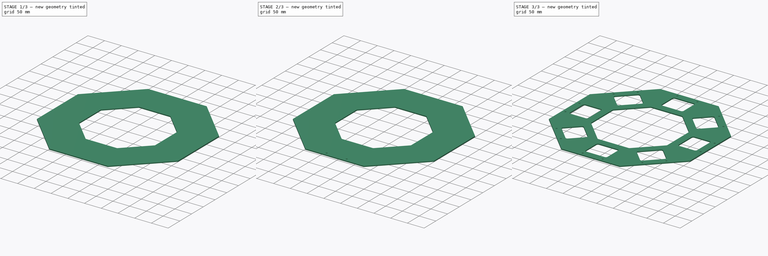
[diagram: build sequence overview — one tinted view per stage of 3, left to right]
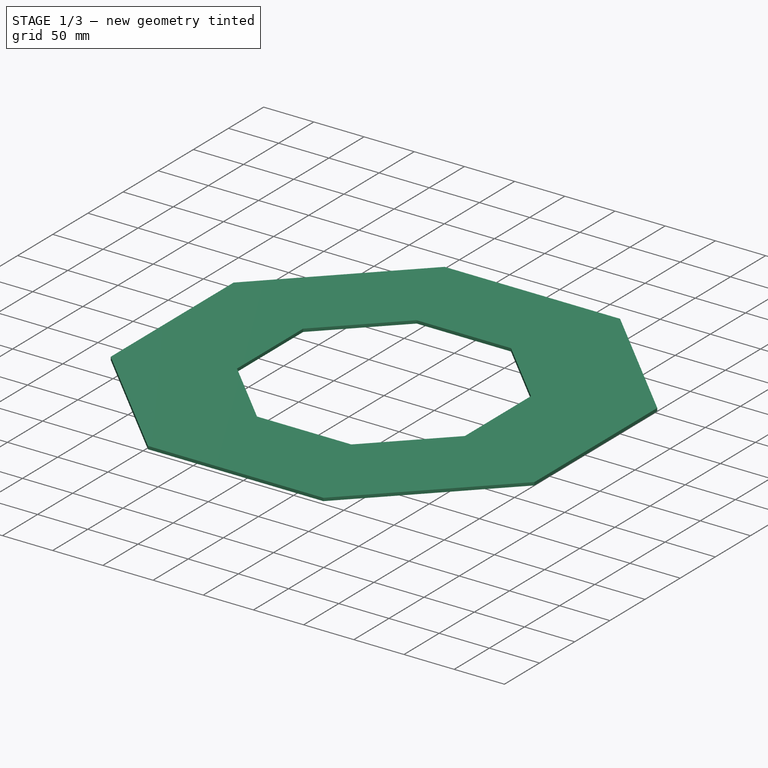
[diagram: stage 1 of 3 — iso view after this stage's code; geometry added in this stage tinted green]
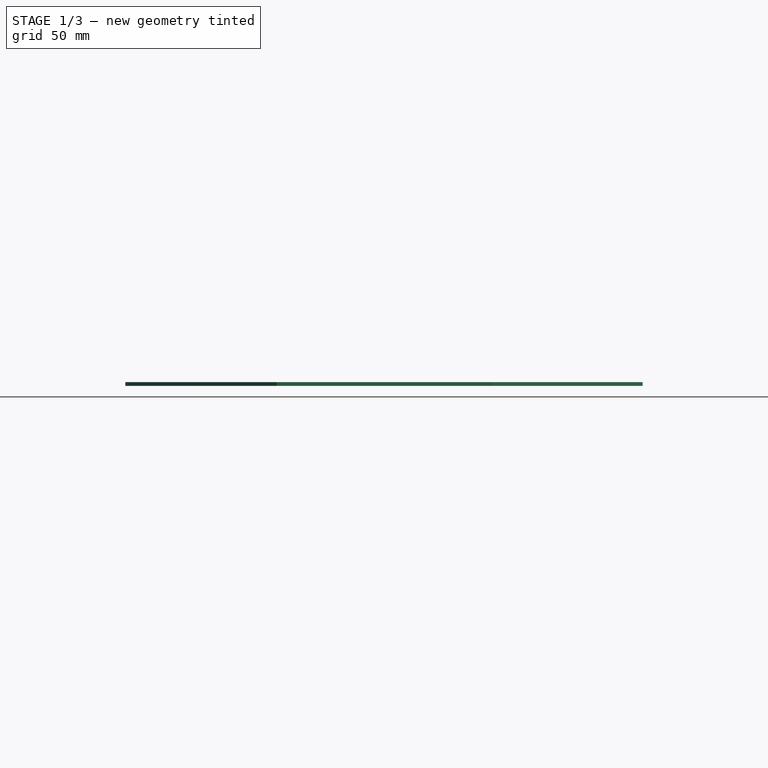
[diagram: stage 1 of 3 — front view after this stage's code; geometry added in this stage tinted green]
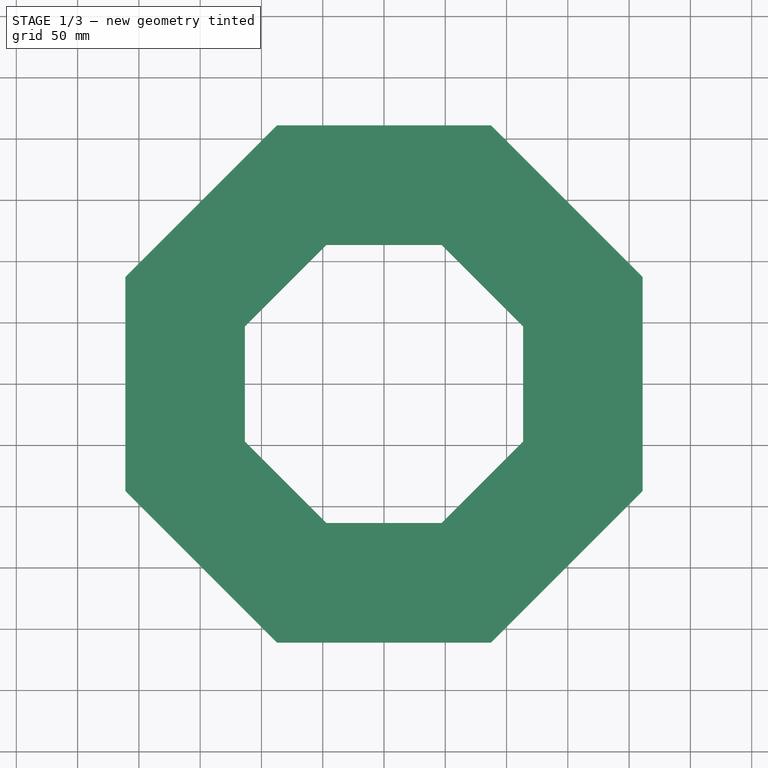
[diagram: stage 1 of 3 — top view after this stage's code; geometry added in this stage tinted green]
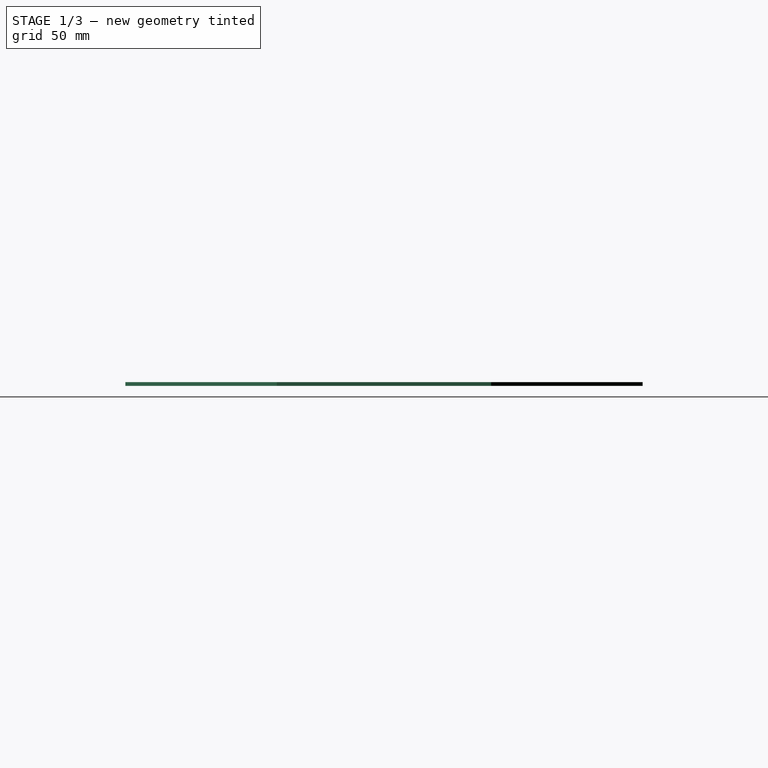
[diagram: stage 1 of 3 — right view after this stage's code; geometry added in this stage tinted green]
FCSTD DOCUMENT  (FreeCAD 1.0R39319 (Git))
Label: OCT-CHTOP-AA
License: Creative Commons Attribution 4.0
LicenseURL: https://creativecommons.org/licenses/by/4.0/
objects: Sketcher::SketchObject×4, PartDesign::Pocket×2, App::Link×1, PartDesign::Pad×1, PartDesign::Fillet×1, PartDesign::Hole×1, PartDesign::PolarPattern×1, PartDesign::Body×1
note: 26 computed .brp shape members not serialized (recipe doc carries the construction recipe); baked Part::Feature solids carry a one-line shape summary decoded from their .brp
EXTERNAL_REF file=../../master.FCStd obj=Spreadsheet

FEATURE [App::Link] Link  label="dims"
  LinkedObject = -> <external ../../master.FCStd>#Spreadsheet
FEATURE [Sketcher::SketchObject] Sketch
  ArcFitTolerance = 1e-06
  AttachmentSupport = -> [XY_Plane]
  FullyConstrained = true
  MakeInternals = false
  MapMode = 5
  expr: Constraints[25] = <<dims>>.iwFurnace
  sketch-geometry (9):
    g0: LineSegment StartX=-87.3991 StartY=211 StartZ=0 EndX=-211 EndY=87.3991 EndZ=0
    g1: LineSegment StartX=-211 StartY=87.3991 StartZ=0 EndX=-211 EndY=-87.3991 EndZ=0
    g2: LineSegment StartX=-211 StartY=-87.3991 StartZ=0 EndX=-87.3991 EndY=-211 EndZ=0
    g3: LineSegment StartX=-87.3991 StartY=-211 StartZ=0 EndX=87.3991 EndY=-211 EndZ=0
    g4: LineSegment StartX=87.3991 StartY=-211 StartZ=0 EndX=211 EndY=-87.3991 EndZ=0
    g5: LineSegment StartX=211 StartY=-87.3991 StartZ=0 EndX=211 EndY=87.3991 EndZ=0
    g6: LineSegment StartX=211 StartY=87.3991 StartZ=0 EndX=87.3991 EndY=211 EndZ=0
    g7: LineSegment StartX=87.3991 StartY=211 StartZ=0 EndX=-87.3991 EndY=211 EndZ=0
    g8: Circle [constr] CenterX=0 CenterY=0 CenterZ=0 NormalX=0 NormalY=0 NormalZ=1 AngleXU=0 Radius=228.385
  constraints (20):
    c: Coincident(g0,g1)
    c: Coincident(g1,g2)
    c: Coincident(g2,g3)
    c: Coincident(g3,g4)
    c: Coincident(g4,g5)
    c: Coincident(g5,g6)
    c: Coincident(g6,g7)
    c: Coincident(g7,g0)
    c: Equal(g0, g1-g7) x7
    c: PointOnObject(g0,g8)
    c: PointOnObject(g1,g8)
    c: PointOnObject(g2,g8)
    c: PointOnObject(g3,g8)
    c: PointOnObject(g4,g8)
    c: PointOnObject(g5,g8)
    c: PointOnObject(g6,g8)
    c: PointOnObject(g7,g8)
    c: Coincident(g8,g-1)
    c: Horizontal(g7)
    c: DistanceY(g3,g6) = 422
FEATURE [PartDesign::Pad] Pad
  Direction = (0,0,1)
  Length = 3
  Length2 = 10
  Profile = -> Sketch
  ReferenceAxis = -> Sketch [N_Axis]
  Reversed = true
  Suppressed = false
  Type = 0
  expr: Length = <<dims>>.tTop
FEATURE [Sketcher::SketchObject] Sketch001
  ArcFitTolerance = 1e-06
  AttachmentSupport = -> [XY_Plane]
  FullyConstrained = true
  MakeInternals = false
  MapMode = 5
  expr: Constraints[25] = <<dims>>.owChamber + 5
  sketch-geometry (9):
    g0: LineSegment StartX=47.0132 StartY=113.5 StartZ=0 EndX=-47.0132 EndY=113.5 EndZ=0
    g1: LineSegment StartX=-47.0132 StartY=113.5 StartZ=0 EndX=-113.5 EndY=47.0132 EndZ=0
    g2: LineSegment StartX=-113.5 StartY=47.0132 StartZ=0 EndX=-113.5 EndY=-47.0132 EndZ=0
    g3: LineSegment StartX=-113.5 StartY=-47.0132 StartZ=0 EndX=-47.0132 EndY=-113.5 EndZ=0
    g4: LineSegment StartX=-47.0132 StartY=-113.5 StartZ=0 EndX=47.0132 EndY=-113.5 EndZ=0
    g5: LineSegment StartX=47.0132 StartY=-113.5 StartZ=0 EndX=113.5 EndY=-47.0132 EndZ=0
    g6: LineSegment StartX=113.5 StartY=-47.0132 StartZ=0 EndX=113.5 EndY=47.0132 EndZ=0
    g7: LineSegment StartX=113.5 StartY=47.0132 StartZ=0 EndX=47.0132 EndY=113.5 EndZ=0
    g8: Circle [constr] CenterX=0 CenterY=0 CenterZ=0 NormalX=0 NormalY=0 NormalZ=1 AngleXU=0 Radius=122.852
  constraints (20):
    c: Coincident(g0,g1)
    c: Coincident(g1,g2)
    c: Coincident(g2,g3)
    c: Coincident(g3,g4)
    c: Coincident(g4,g5)
    c: Coincident(g5,g6)
    c: Coincident(g6,g7)
    c: Coincident(g7,g0)
    c: Equal(g0, g1-g7) x7
    c: PointOnObject(g0,g8)
    c: PointOnObject(g1,g8)
    c: PointOnObject(g2,g8)
    c: PointOnObject(g3,g8)
    c: PointOnObject(g4,g8)
    c: PointOnObject(g5,g8)
    c: PointOnObject(g6,g8)
    c: PointOnObject(g7,g8)
    c: Coincident(g8,g-1)
    c: Horizontal(g0)
    c: DistanceY(g3,g0) = 227
FEATURE [PartDesign::Pocket] Pocket  label="chamber clearance pocket"
  BaseFeature = -> Pad
  Direction = (0,0,-1)
  Length = 5
  Length2 = 5
  Profile = -> Sketch001
  ReferenceAxis = -> Sketch001 [N_Axis]
  Suppressed = false
  Type = 1
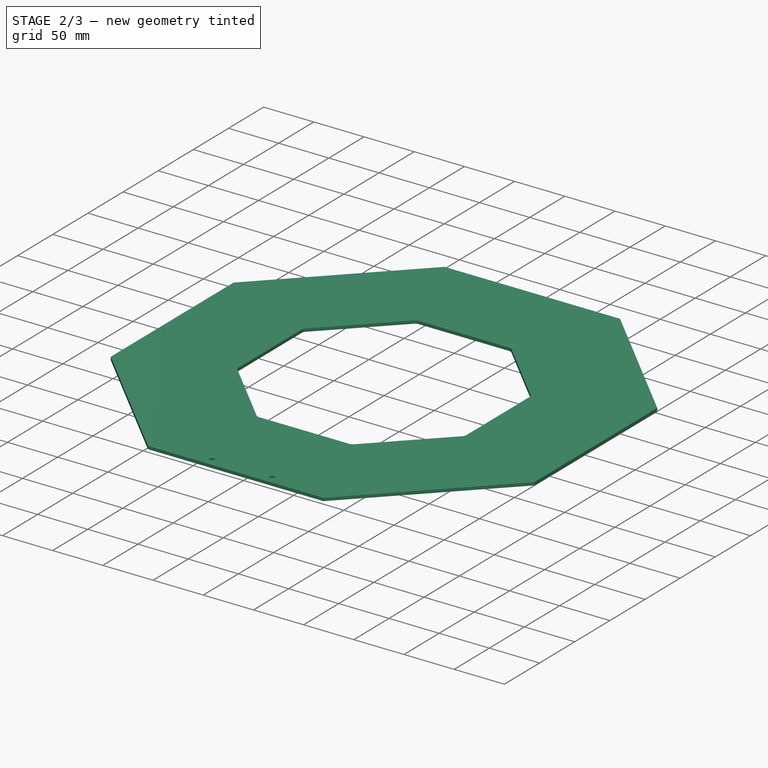
[diagram: stage 2 of 3 — iso view after this stage's code; geometry added in this stage tinted green]
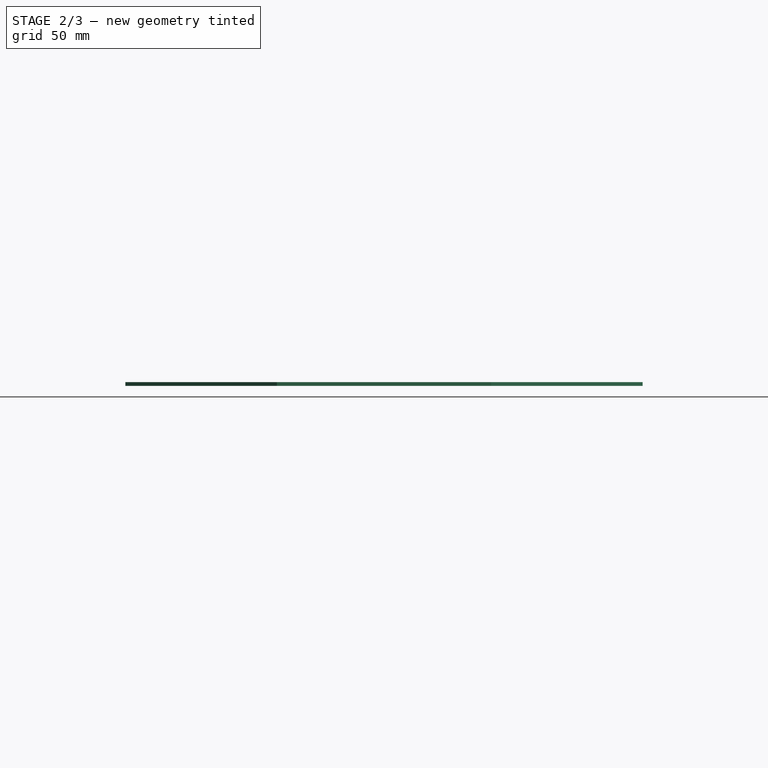
[diagram: stage 2 of 3 — front view after this stage's code; geometry added in this stage tinted green]
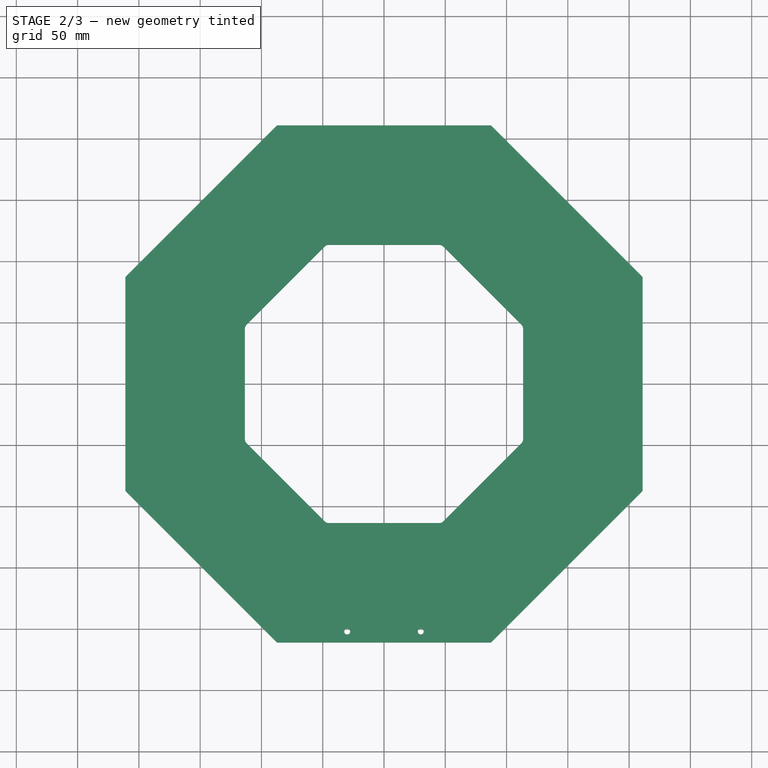
[diagram: stage 2 of 3 — top view after this stage's code; geometry added in this stage tinted green]
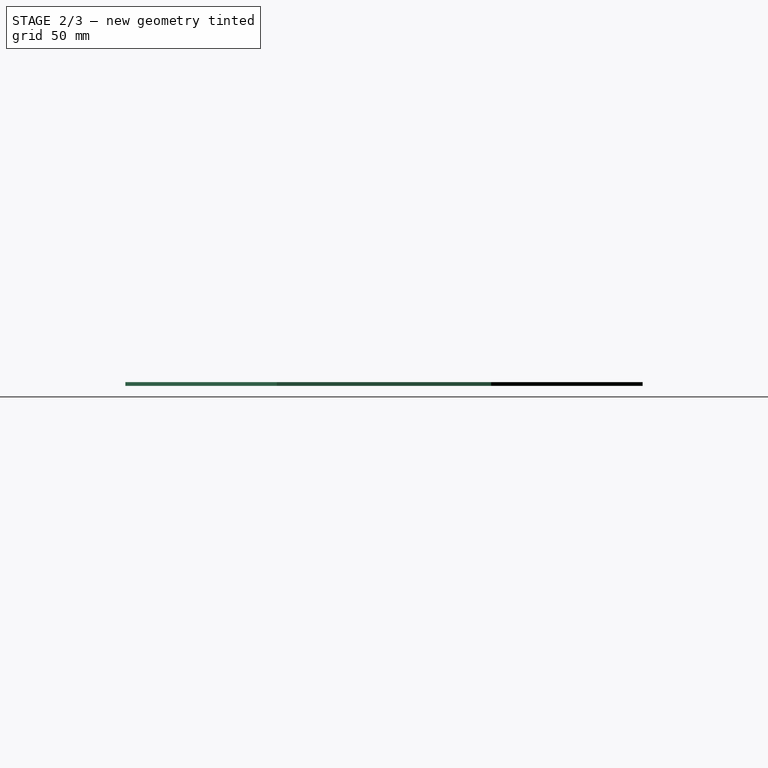
[diagram: stage 2 of 3 — right view after this stage's code; geometry added in this stage tinted green]
FEATURE [PartDesign::Fillet] Fillet
  Base = -> Pocket [Edge43,Edge41,Edge42,Edge48,Edge47,Edge46,Edge45,Edge44]
  BaseFeature = -> Pocket
  Radius = 5
  SupportTransform = false
  Suppressed = false
  UseAllEdges = false
FEATURE [Sketcher::SketchObject] Sketch002
  ArcFitTolerance = 1e-06
  AttachmentSupport = -> [XY_Plane]
  FullyConstrained = true
  MakeInternals = false
  MapMode = 5
  expr: Constraints[1] = <<dims>>.iwFurnace / 2 - 9
  sketch-geometry (3):
    g0: Circle CenterX=-30 CenterY=-202 CenterZ=0 NormalX=0 NormalY=0 NormalZ=1 AngleXU=0 Radius=2
    g1: Circle CenterX=30 CenterY=-202 CenterZ=0 NormalX=0 NormalY=0 NormalZ=1 AngleXU=0 Radius=2
    g2: LineSegment [constr] StartX=-30 StartY=-202 StartZ=0 EndX=30 EndY=-202 EndZ=0
  constraints (7):
    c: Diameter(g0) = 4
    c: DistanceY(g0,g-1) = 202
    c: Coincident(g2,g0)
    c: Coincident(g2,g1)
    c: Symmetric(g1,g0,g-2)
    c: DistanceX(g2,g2) = 60
    c: Equal(g0,g1)
FEATURE [PartDesign::Hole] Hole  label="panel hole"
  BaseFeature = -> Fillet
  CustomThreadClearance = 0
  Depth = 1205.55
  DepthType = 1
  Diameter = 4.8
  DrillForDepth = false
  DrillPoint = 1
  DrillPointAngle = 118
  HoleCutCountersinkAngle = 90
  HoleCutCustomValues = false
  HoleCutDepth = 0
  HoleCutDiameter = 6.1
  HoleCutType = 0
  ModelThread = false
  Profile = -> Sketch002
  Suppressed = false
  Tapered = false
  TaperedAngle = 90
  ThreadClass = 0
  ThreadDepth = 1205.55
  ThreadDepthType = 0
  ThreadDirection = 0
  ThreadFit = 2
  ThreadSize = 11
  ThreadType = 1
  Threaded = false
  UseCustomThreadClearance = false
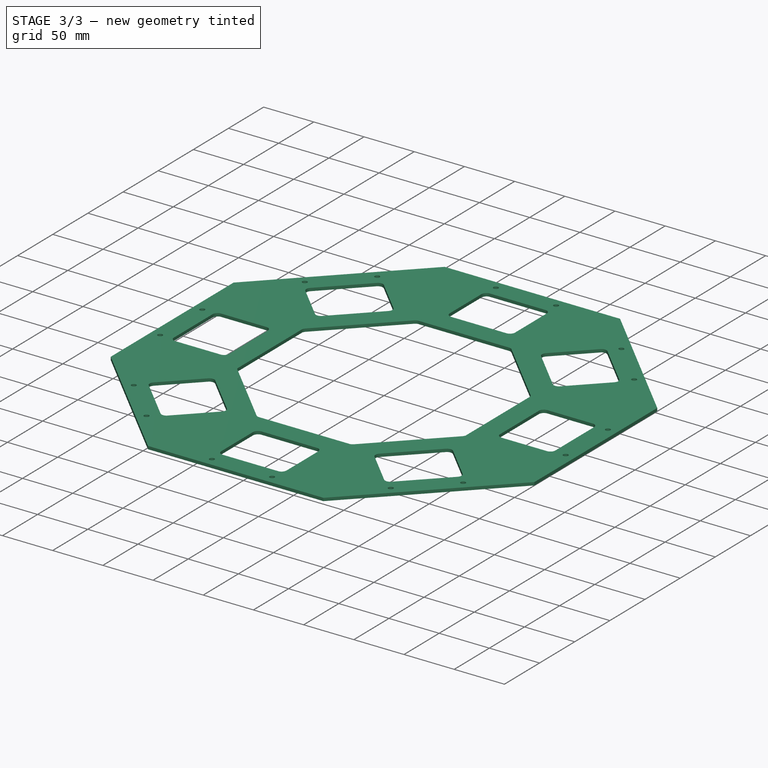
[diagram: stage 3 of 3 — iso view after this stage's code; geometry added in this stage tinted green]
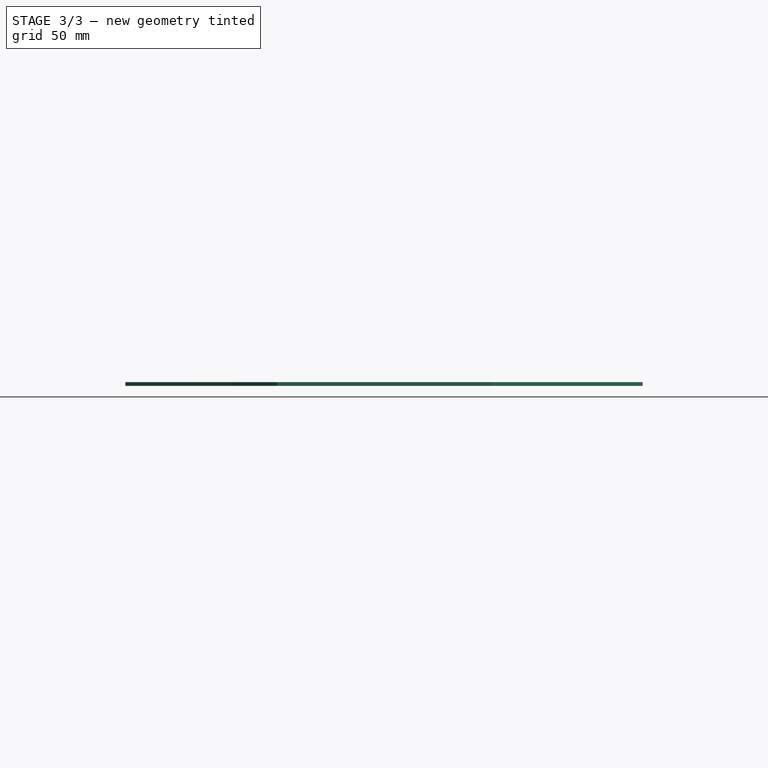
[diagram: stage 3 of 3 — front view after this stage's code; geometry added in this stage tinted green]
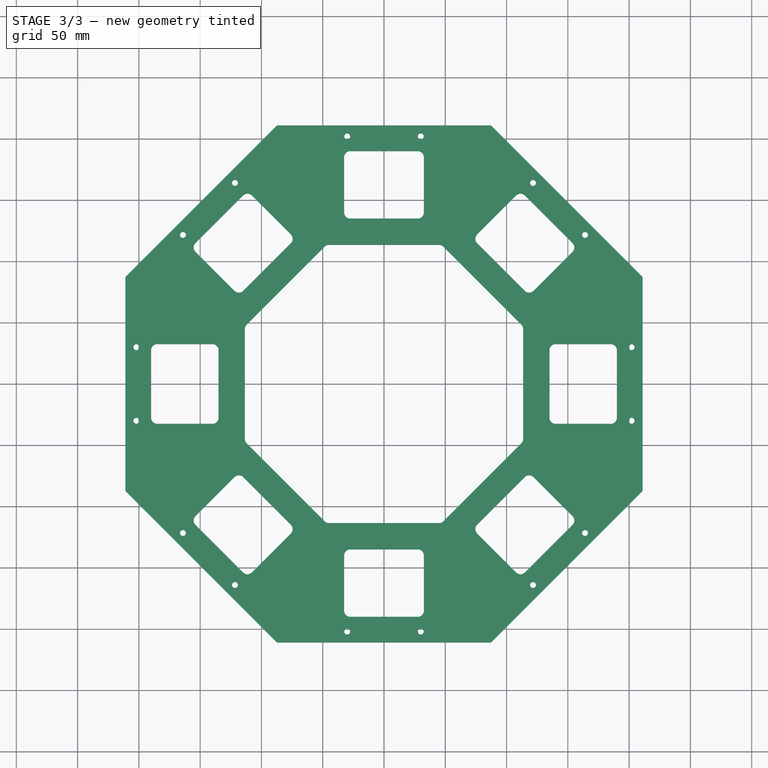
[diagram: stage 3 of 3 — top view after this stage's code; geometry added in this stage tinted green]
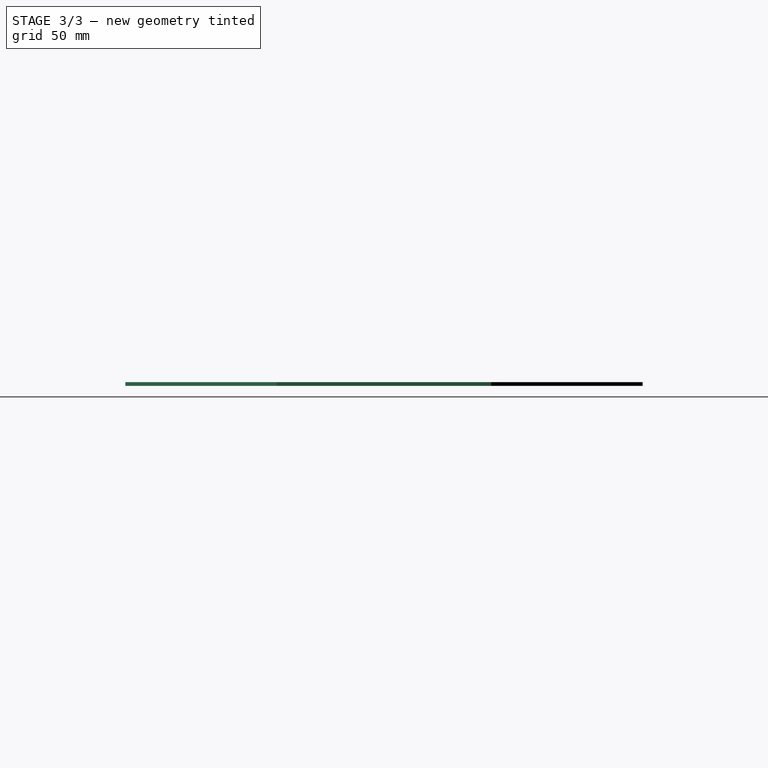
[diagram: stage 3 of 3 — right view after this stage's code; geometry added in this stage tinted green]
FEATURE [Sketcher::SketchObject] Sketch003
  ArcFitTolerance = 1e-06
  AttachmentSupport = -> [XY_Plane]
  FullyConstrained = true
  MakeInternals = false
  MapMode = 5
  expr: Constraints[5] = <<dims>>.iwFurnace / 2 - 11 - 10
  sketch-geometry (12):
    g0: LineSegment StartX=-27.5 StartY=-190 StartZ=0 EndX=27.5 EndY=-190 EndZ=0
    g1: LineSegment StartX=32.5 StartY=-185 StartZ=0 EndX=32.5 EndY=-140 EndZ=0
    g2: LineSegment StartX=27.5 StartY=-135 StartZ=0 EndX=-27.5 EndY=-135 EndZ=0
    g3: LineSegment StartX=-32.5 StartY=-140 StartZ=0 EndX=-32.5 EndY=-185 EndZ=0
    g4: ArcOfCircle CenterX=-27.5 CenterY=-140 CenterZ=0 NormalX=0 NormalY=0 NormalZ=1 AngleXU=0 Radius=5 StartAngle=1.5708 EndAngle=3.14159
    g5: GeomPoint [constr] X=-32.5 Y=-135 Z=0
    g6: ArcOfCircle CenterX=27.5 CenterY=-140 CenterZ=0 NormalX=0 NormalY=0 NormalZ=1 AngleXU=0 Radius=5 StartAngle=0 EndAngle=1.5708
    g7: GeomPoint [constr] X=32.5 Y=-135 Z=0
    g8: ArcOfCircle CenterX=27.5 CenterY=-185 CenterZ=0 NormalX=0 NormalY=0 NormalZ=1 AngleXU=0 Radius=5 StartAngle=4.71239 EndAngle=6.28319
    g9: GeomPoint [constr] X=32.5 Y=-190 Z=0
    g10: ArcOfCircle CenterX=-27.5 CenterY=-185 CenterZ=0 NormalX=0 NormalY=0 NormalZ=1 AngleXU=0 Radius=5 StartAngle=3.14159 EndAngle=4.71239
    g11: GeomPoint [constr] X=-32.5 Y=-190 Z=0
  constraints (27):
    c: Horizontal(g0)
    c: Vertical(g1)
    c: Vertical(g3)
    c: Symmetric(g5,g7,g-2)
    c: DistanceY(g11,g5) = 55
    c: DistanceY(g11,g-1) = 190
    c: DistanceX(g5,g7) = 65
    c: PointOnObject(g5,g2)
    c: PointOnObject(g5,g3)
    c: Tangent(g2,g4) = -1.5708
    c: Tangent(g3,g4) = -1.5708
    c: PointOnObject(g7,g2)
    c: PointOnObject(g7,g1)
    c: Tangent(g2,g6) = -1.5708
    c: Tangent(g1,g6) = -1.5708
    c: PointOnObject(g9,g0)
    c: PointOnObject(g9,g1)
    c: Tangent(g0,g8) = -1.5708
    c: Tangent(g1,g8) = -1.5708
    c: PointOnObject(g11,g0)
    c: PointOnObject(g11,g3)
    c: Tangent(g0,g10) = -1.5708
    c: Tangent(g3,g10) = -1.5708
    c: Equal(g4,g6)
    c: Equal(g6,g8)
    c: Equal(g8,g10)
    c: Radius(g4) = 5
FEATURE [PartDesign::Pocket] Pocket001  label="hand hole"
  BaseFeature = -> Hole
  Direction = (0,0,-1)
  Length = 5
  Length2 = 5
  Profile = -> Sketch003
  ReferenceAxis = -> Sketch003 [N_Axis]
  Suppressed = false
  Type = 1
FEATURE [PartDesign::PolarPattern] PolarPattern
  Angle = 360
  Axis = -> Sketch002 [N_Axis]
  BaseFeature = -> Pocket001
  Mode = 0
  Occurrences = 8
  Offset = 120
  Originals = -> [Hole,Pocket001]
  Suppressed = false
  TransformMode = 0
FEATURE [PartDesign::Body] Body  label="OCT-CHTOP-AA"
  AllowCompound = false
  Group = -> [Sketch,Pad,Sketch001,Pocket,Fillet,Sketch002,Hole,Sketch003,Pocket001,PolarPattern]
  Origin = -> Origin
  Tip = -> PolarPattern
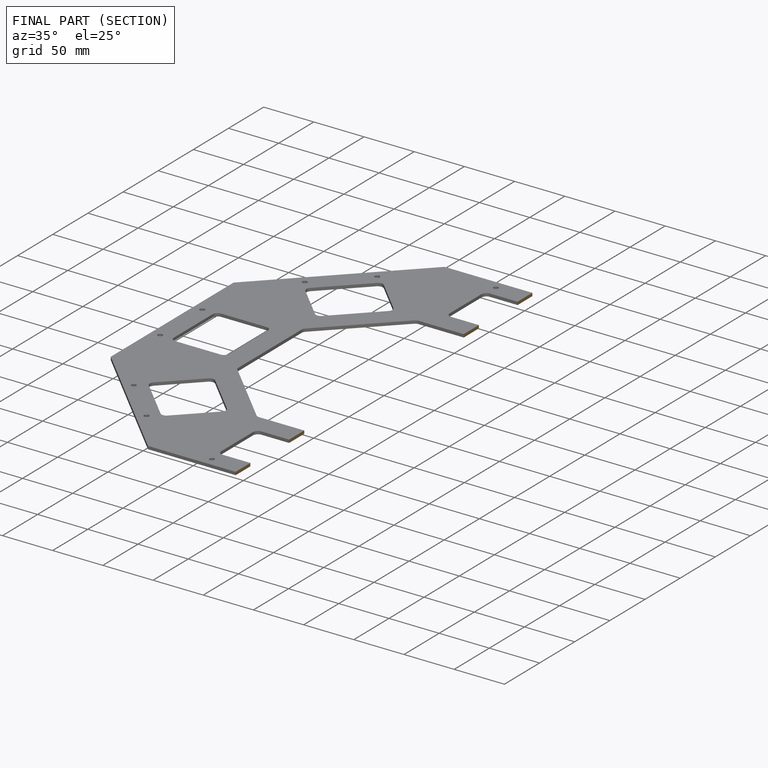
[diagram: finished part — half-section view (interior)]
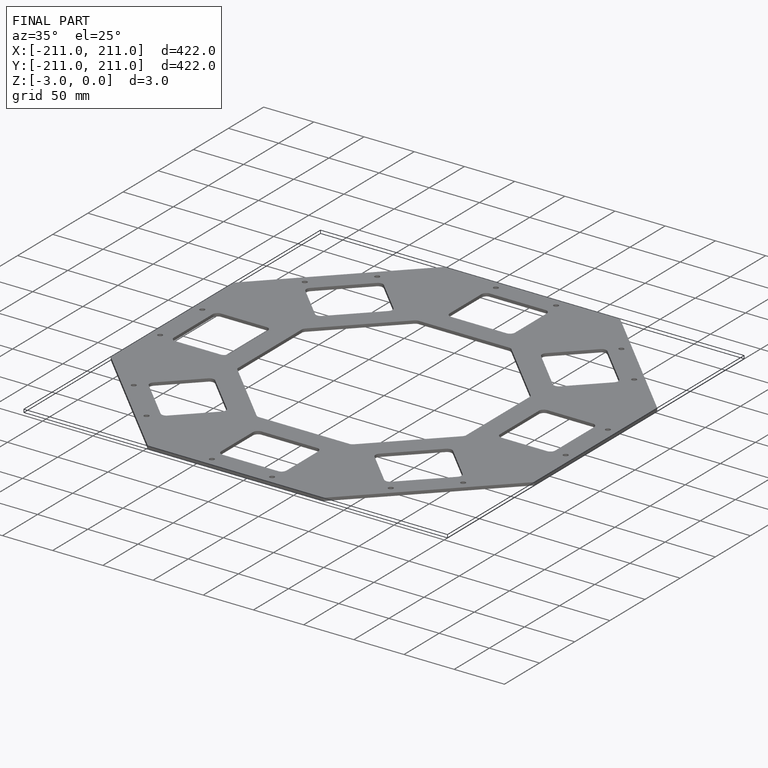
[diagram: finished part — iso view with bounding-box wireframe]
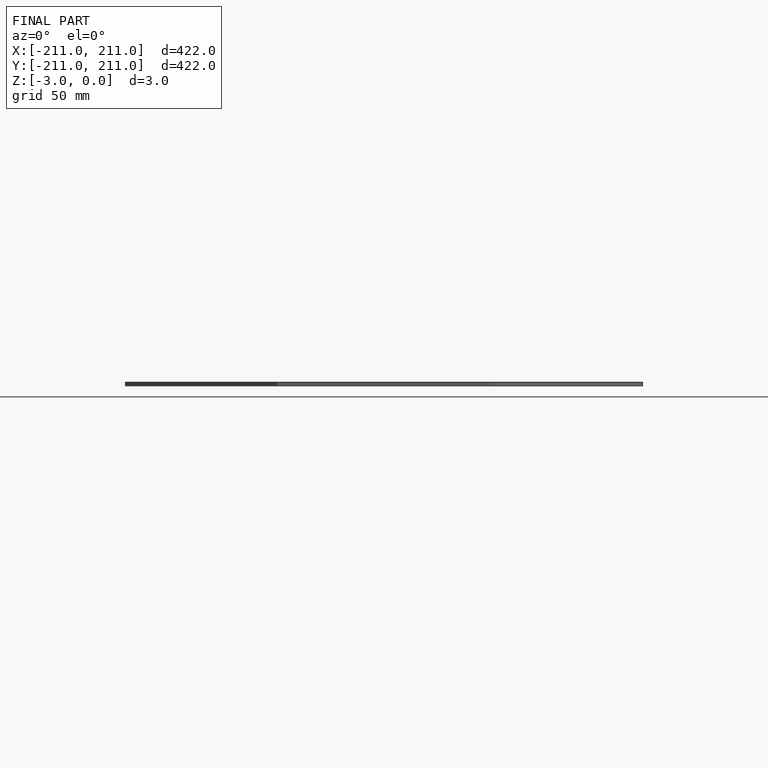
[diagram: finished part — front view with bounding-box wireframe]
